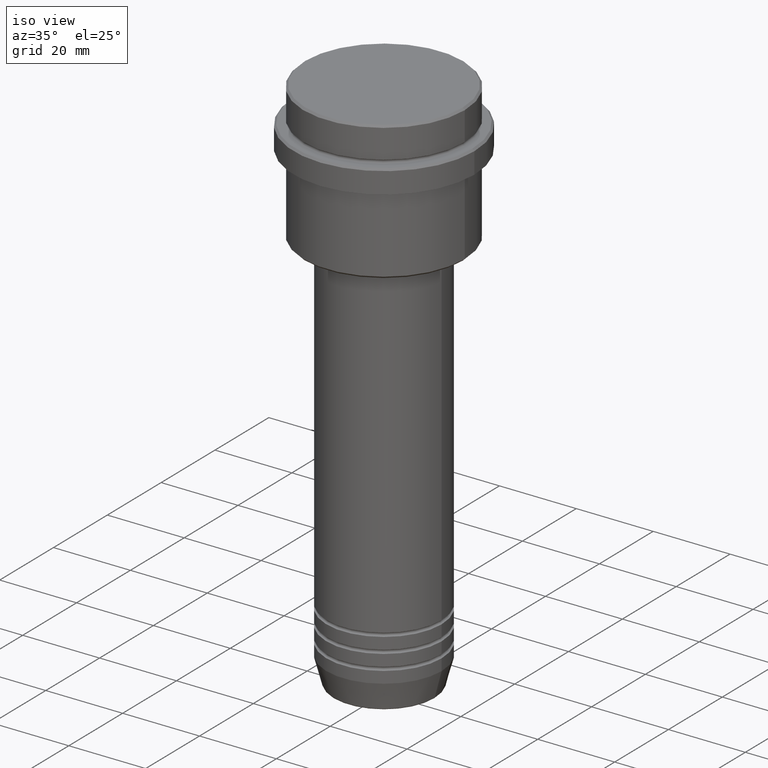
[diagram: clean part render]
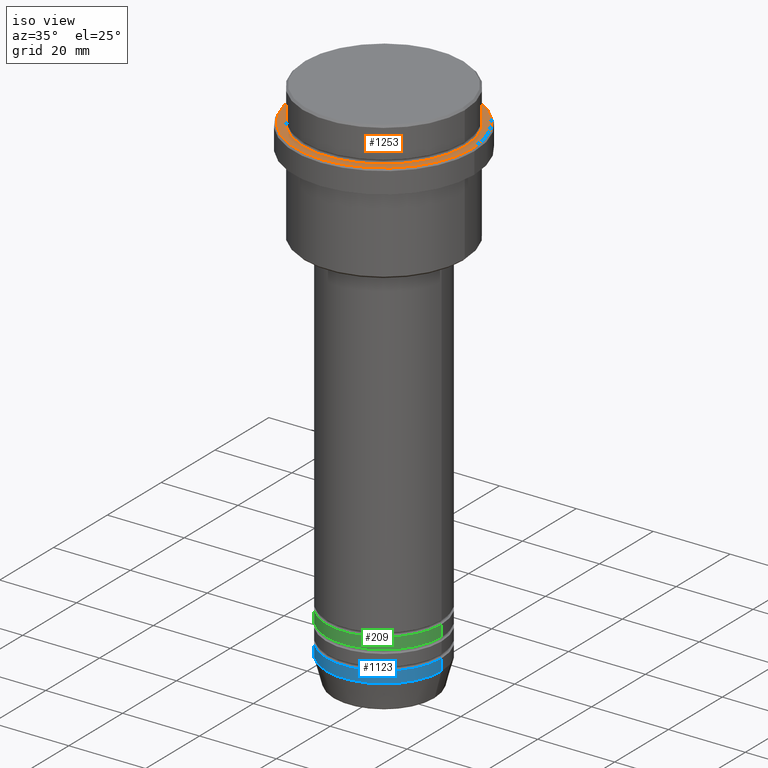
[diagram: same view with three faces highlighted in distinct colors, each labeled with its STEP entity id]
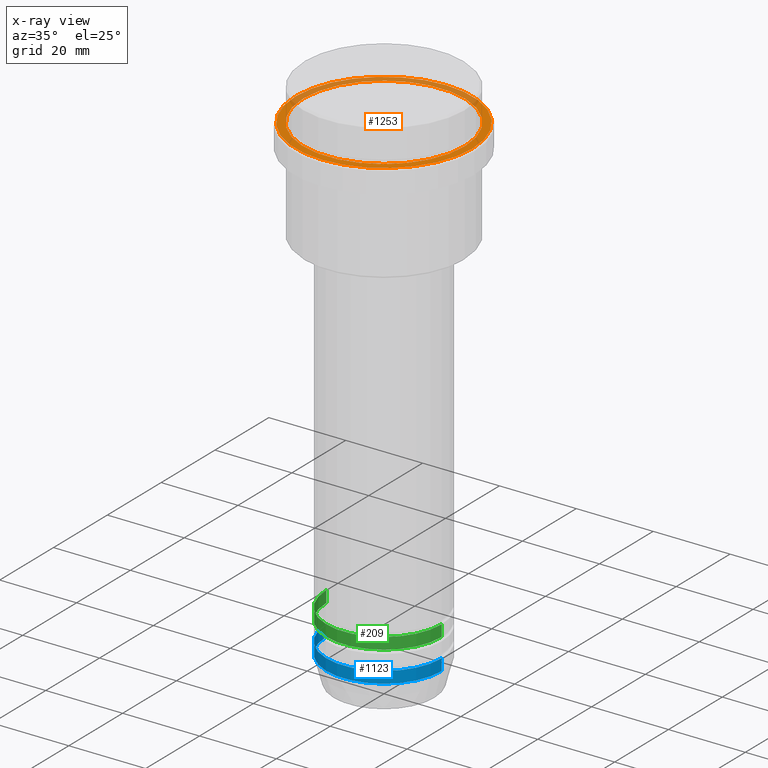
[diagram: x-ray of the same camera — body ghosted, the three highlighted faces saturated]
A machine part, iso view with three faces highlighted in distinct colors.
The next image is the same camera in x-ray (body ghosted, the three faces saturated) — at least one of them is partly hidden behind the body in this view.
Their STEP definitions:

[orange] entity #1253 — the highlighted planar face has unit normal (0, -0, 1).
#61 = ORIENTED_EDGE ( 'NONE', *, *, #297, .T. ) ;
#105 = VERTEX_POINT ( 'NONE', #931 ) ;
#175 = DIRECTION ( 'NONE',  ( 0.000000000000000000, 0.000000000000000000, -1.000000000000000000 ) ) ;
#182 = AXIS2_PLACEMENT_3D ( 'NONE', #522, #1416, #185 ) ;
#185 = DIRECTION ( 'NONE',  ( 1.000000000000000000, 0.000000000000000000, 0.000000000000000000 ) ) ;
#220 = AXIS2_PLACEMENT_3D ( 'NONE', #1355, #243, #689 ) ;
#230 = EDGE_CURVE ( 'NONE', #1402, #849, #1354, .T. ) ;
#243 = DIRECTION ( 'NONE',  ( 0.000000000000000000, -0.000000000000000000, 1.000000000000000000 ) ) ;
#269 = CARTESIAN_POINT ( 'NONE',  ( 23.00000000000002487, 2.847303808017597717E-15, -9.000000000000000000 ) ) ;
#297 = EDGE_CURVE ( 'NONE', #1154, #105, #1200, .T. ) ;
#316 = ORIENTED_EDGE ( 'NONE', *, *, #896, .T. ) ;
#522 = CARTESIAN_POINT ( 'NONE',  ( 0.000000000000000000, 0.000000000000000000, -9.000000000000000000 ) ) ;
#636 = EDGE_LOOP ( 'NONE', ( #316, #61 ) ) ;
#637 = CIRCLE ( 'NONE', #1126, 23.00000000000002487 ) ;
#670 = DIRECTION ( 'NONE',  ( 1.000000000000000000, 0.000000000000000000, 0.000000000000000000 ) ) ;
#683 = FACE_OUTER_BOUND ( 'NONE', #636, .T. ) ;
#689 = DIRECTION ( 'NONE',  ( 1.000000000000000000, 0.000000000000000000, 0.000000000000000000 ) ) ;
#778 = DIRECTION ( 'NONE',  ( -0.000000000000000000, -0.000000000000000000, 1.000000000000000000 ) ) ;
#831 = AXIS2_PLACEMENT_3D ( 'NONE', #1199, #1185, #1409 ) ;
#833 = CARTESIAN_POINT ( 'NONE',  ( -20.99999999999999289, 2.571758278209440872E-15, -9.000000000000000000 ) ) ;
#849 = VERTEX_POINT ( 'NONE', #1077 ) ;
#896 = EDGE_CURVE ( 'NONE', #105, #1154, #637, .T. ) ;
#927 = EDGE_CURVE ( 'NONE', #849, #1402, #1357, .T. ) ;
#931 = CARTESIAN_POINT ( 'NONE',  ( -23.00000000000002487, 0.000000000000000000, -9.000000000000000000 ) ) ;
#938 = DIRECTION ( 'NONE',  ( 1.000000000000000000, 0.000000000000000000, 0.000000000000000000 ) ) ;
#1002 = CARTESIAN_POINT ( 'NONE',  ( 0.000000000000000000, 0.000000000000000000, -9.000000000000000000 ) ) ;
#1029 = AXIS2_PLACEMENT_3D ( 'NONE', #1282, #175, #938 ) ;
#1077 = CARTESIAN_POINT ( 'NONE',  ( 20.99999999999999289, 0.000000000000000000, -9.000000000000000000 ) ) ;
#1126 = AXIS2_PLACEMENT_3D ( 'NONE', #1002, #778, #670 ) ;
#1132 = PLANE ( 'NONE',  #220 ) ;
#1154 = VERTEX_POINT ( 'NONE', #269 ) ;
#1185 = DIRECTION ( 'NONE',  ( 0.000000000000000000, 0.000000000000000000, -1.000000000000000000 ) ) ;
#1199 = CARTESIAN_POINT ( 'NONE',  ( 0.000000000000000000, 0.000000000000000000, -9.000000000000000000 ) ) ;
#1200 = CIRCLE ( 'NONE', #182, 23.00000000000002487 ) ;
#1253 = ADVANCED_FACE ( 'NONE', ( #683, #1338 ), #1132, .T. ) ;
#1282 = CARTESIAN_POINT ( 'NONE',  ( 0.000000000000000000, 0.000000000000000000, -9.000000000000000000 ) ) ;
#1322 = ORIENTED_EDGE ( 'NONE', *, *, #230, .T. ) ;
#1338 = FACE_BOUND ( 'NONE', #1340, .T. ) ;
#1340 = EDGE_LOOP ( 'NONE', ( #1374, #1322 ) ) ;
#1354 = CIRCLE ( 'NONE', #1029, 20.99999999999999289 ) ;
#1355 = CARTESIAN_POINT ( 'NONE',  ( 0.000000000000000000, 20.49999999999999645, -9.000000000000000000 ) ) ;
#1357 = CIRCLE ( 'NONE', #831, 20.99999999999999289 ) ;
#1374 = ORIENTED_EDGE ( 'NONE', *, *, #927, .T. ) ;
#1402 = VERTEX_POINT ( 'NONE', #833 ) ;
#1409 = DIRECTION ( 'NONE',  ( 1.000000000000000000, 0.000000000000000000, 0.000000000000000000 ) ) ;
#1416 = DIRECTION ( 'NONE',  ( -0.000000000000000000, -0.000000000000000000, 1.000000000000000000 ) ) ;

[blue] entity #1123 — the highlighted cylindrical surface (partial cylindrical patch) has radius 15 mm, axis along (-0, -0, 1).
#12 = CARTESIAN_POINT ( 'NONE',  ( 15.00000000000000000, 0.000000000000000000, -130.9999999999999716 ) ) ;
#35 = DIRECTION ( 'NONE',  ( 1.000000000000000000, 0.000000000000000000, 0.000000000000000000 ) ) ;
#39 = LINE ( 'NONE', #911, #1243 ) ;
#96 = CARTESIAN_POINT ( 'NONE',  ( 0.000000000000000000, 0.000000000000000000, -130.9999999999999716 ) ) ;
#151 = VERTEX_POINT ( 'NONE', #12 ) ;
#248 = CARTESIAN_POINT ( 'NONE',  ( 0.000000000000000000, 0.000000000000000000, -133.9999999999999716 ) ) ;
#274 = DIRECTION ( 'NONE',  ( 1.000000000000000000, 0.000000000000000000, 0.000000000000000000 ) ) ;
#308 = CARTESIAN_POINT ( 'NONE',  ( 15.00000000000000000, 0.000000000000000000, -133.9999999999999716 ) ) ;
#356 = VERTEX_POINT ( 'NONE', #308 ) ;
#362 = EDGE_CURVE ( 'NONE', #966, #647, #953, .T. ) ;
#396 = ORIENTED_EDGE ( 'NONE', *, *, #1333, .T. ) ;
#426 = AXIS2_PLACEMENT_3D ( 'NONE', #1285, #1059, #274 ) ;
#435 = CARTESIAN_POINT ( 'NONE',  ( -15.00000000000000000, 1.836970198721029589E-15, -133.9999999999999716 ) ) ;
#447 = VECTOR ( 'NONE', #979, 1000.000000000000000 ) ;
#459 = EDGE_CURVE ( 'NONE', #966, #356, #719, .T. ) ;
#498 = DIRECTION ( 'NONE',  ( -0.000000000000000000, -0.000000000000000000, 1.000000000000000000 ) ) ;
#517 = CYLINDRICAL_SURFACE ( 'NONE', #426, 15.00000000000000000 ) ;
#561 = AXIS2_PLACEMENT_3D ( 'NONE', #248, #498, #35 ) ;
#647 = VERTEX_POINT ( 'NONE', #798 ) ;
#684 = EDGE_LOOP ( 'NONE', ( #1066, #1302, #396, #1137 ) ) ;
#703 = DIRECTION ( 'NONE',  ( -0.000000000000000000, -0.000000000000000000, 1.000000000000000000 ) ) ;
#719 = CIRCLE ( 'NONE', #561, 15.00000000000000000 ) ;
#798 = CARTESIAN_POINT ( 'NONE',  ( -15.00000000000000000, 1.836970198721029589E-15, -130.9999999999999716 ) ) ;
#805 = EDGE_CURVE ( 'NONE', #647, #151, #1149, .T. ) ;
#847 = DIRECTION ( 'NONE',  ( -0.000000000000000000, -0.000000000000000000, 1.000000000000000000 ) ) ;
#911 = CARTESIAN_POINT ( 'NONE',  ( 15.00000000000000000, 0.000000000000000000, 0.000000000000000000 ) ) ;
#953 = LINE ( 'NONE', #1084, #447 ) ;
#966 = VERTEX_POINT ( 'NONE', #435 ) ;
#979 = DIRECTION ( 'NONE',  ( -0.000000000000000000, -0.000000000000000000, 1.000000000000000000 ) ) ;
#1059 = DIRECTION ( 'NONE',  ( -0.000000000000000000, -0.000000000000000000, 1.000000000000000000 ) ) ;
#1066 = ORIENTED_EDGE ( 'NONE', *, *, #362, .F. ) ;
#1084 = CARTESIAN_POINT ( 'NONE',  ( -15.00000000000000000, 1.836970198721029589E-15, 0.000000000000000000 ) ) ;
#1123 = ADVANCED_FACE ( 'NONE', ( #1365 ), #517, .T. ) ;
#1137 = ORIENTED_EDGE ( 'NONE', *, *, #805, .F. ) ;
#1149 = CIRCLE ( 'NONE', #1264, 15.00000000000000000 ) ;
#1243 = VECTOR ( 'NONE', #703, 1000.000000000000000 ) ;
#1264 = AXIS2_PLACEMENT_3D ( 'NONE', #96, #847, #1284 ) ;
#1284 = DIRECTION ( 'NONE',  ( 1.000000000000000000, 0.000000000000000000, 0.000000000000000000 ) ) ;
#1285 = CARTESIAN_POINT ( 'NONE',  ( 0.000000000000000000, 0.000000000000000000, 0.000000000000000000 ) ) ;
#1302 = ORIENTED_EDGE ( 'NONE', *, *, #459, .T. ) ;
#1333 = EDGE_CURVE ( 'NONE', #356, #151, #39, .T. ) ;
#1365 = FACE_OUTER_BOUND ( 'NONE', #684, .T. ) ;

[green] entity #209 — the highlighted cylindrical surface (partial cylindrical patch) has radius 15 mm, axis along (-0, -0, 1).
#87 = CYLINDRICAL_SURFACE ( 'NONE', #939, 15.00000000000000000 ) ;
#94 = VERTEX_POINT ( 'NONE', #1279 ) ;
#115 = EDGE_LOOP ( 'NONE', ( #599, #303, #1385, #551 ) ) ;
#209 = ADVANCED_FACE ( 'NONE', ( #1067 ), #87, .T. ) ;
#237 = VECTOR ( 'NONE', #1158, 1000.000000000000000 ) ;
#252 = CARTESIAN_POINT ( 'NONE',  ( 0.000000000000000000, 0.000000000000000000, -122.9999999999998721 ) ) ;
#258 = AXIS2_PLACEMENT_3D ( 'NONE', #824, #509, #716 ) ;
#263 = CARTESIAN_POINT ( 'NONE',  ( 15.00000000000000000, 0.000000000000000000, -122.9999999999998721 ) ) ;
#303 = ORIENTED_EDGE ( 'NONE', *, *, #1394, .T. ) ;
#342 = VERTEX_POINT ( 'NONE', #753 ) ;
#363 = CARTESIAN_POINT ( 'NONE',  ( 15.00000000000000000, 0.000000000000000000, 0.000000000000000000 ) ) ;
#455 = EDGE_CURVE ( 'NONE', #342, #1332, #1350, .T. ) ;
#509 = DIRECTION ( 'NONE',  ( -0.000000000000000000, -0.000000000000000000, 1.000000000000000000 ) ) ;
#541 = AXIS2_PLACEMENT_3D ( 'NONE', #252, #905, #1334 ) ;
#551 = ORIENTED_EDGE ( 'NONE', *, *, #620, .F. ) ;
#599 = ORIENTED_EDGE ( 'NONE', *, *, #786, .F. ) ;
#602 = VERTEX_POINT ( 'NONE', #866 ) ;
#620 = EDGE_CURVE ( 'NONE', #602, #1332, #1147, .T. ) ;
#642 = LINE ( 'NONE', #1184, #774 ) ;
#649 = DIRECTION ( 'NONE',  ( 1.000000000000000000, 0.000000000000000000, 0.000000000000000000 ) ) ;
#702 = CIRCLE ( 'NONE', #258, 15.00000000000000000 ) ;
#716 = DIRECTION ( 'NONE',  ( 1.000000000000000000, 0.000000000000000000, 0.000000000000000000 ) ) ;
#734 = CARTESIAN_POINT ( 'NONE',  ( 0.000000000000000000, 0.000000000000000000, 0.000000000000000000 ) ) ;
#753 = CARTESIAN_POINT ( 'NONE',  ( 15.00000000000000000, 0.000000000000000000, -125.9999999999998863 ) ) ;
#774 = VECTOR ( 'NONE', #1198, 1000.000000000000000 ) ;
#786 = EDGE_CURVE ( 'NONE', #94, #602, #642, .T. ) ;
#824 = CARTESIAN_POINT ( 'NONE',  ( 0.000000000000000000, 0.000000000000000000, -125.9999999999998863 ) ) ;
#866 = CARTESIAN_POINT ( 'NONE',  ( -15.00000000000000000, 1.836970198721029589E-15, -122.9999999999998721 ) ) ;
#869 = DIRECTION ( 'NONE',  ( -0.000000000000000000, -0.000000000000000000, 1.000000000000000000 ) ) ;
#905 = DIRECTION ( 'NONE',  ( -0.000000000000000000, -0.000000000000000000, 1.000000000000000000 ) ) ;
#939 = AXIS2_PLACEMENT_3D ( 'NONE', #734, #869, #649 ) ;
#1067 = FACE_OUTER_BOUND ( 'NONE', #115, .T. ) ;
#1147 = CIRCLE ( 'NONE', #541, 15.00000000000000000 ) ;
#1158 = DIRECTION ( 'NONE',  ( -0.000000000000000000, -0.000000000000000000, 1.000000000000000000 ) ) ;
#1184 = CARTESIAN_POINT ( 'NONE',  ( -15.00000000000000000, 1.836970198721029589E-15, 0.000000000000000000 ) ) ;
#1198 = DIRECTION ( 'NONE',  ( -0.000000000000000000, -0.000000000000000000, 1.000000000000000000 ) ) ;
#1279 = CARTESIAN_POINT ( 'NONE',  ( -15.00000000000000000, 1.836970198721029589E-15, -125.9999999999998863 ) ) ;
#1332 = VERTEX_POINT ( 'NONE', #263 ) ;
#1334 = DIRECTION ( 'NONE',  ( 1.000000000000000000, 0.000000000000000000, 0.000000000000000000 ) ) ;
#1350 = LINE ( 'NONE', #363, #237 ) ;
#1385 = ORIENTED_EDGE ( 'NONE', *, *, #455, .T. ) ;
#1394 = EDGE_CURVE ( 'NONE', #94, #342, #702, .T. ) ;